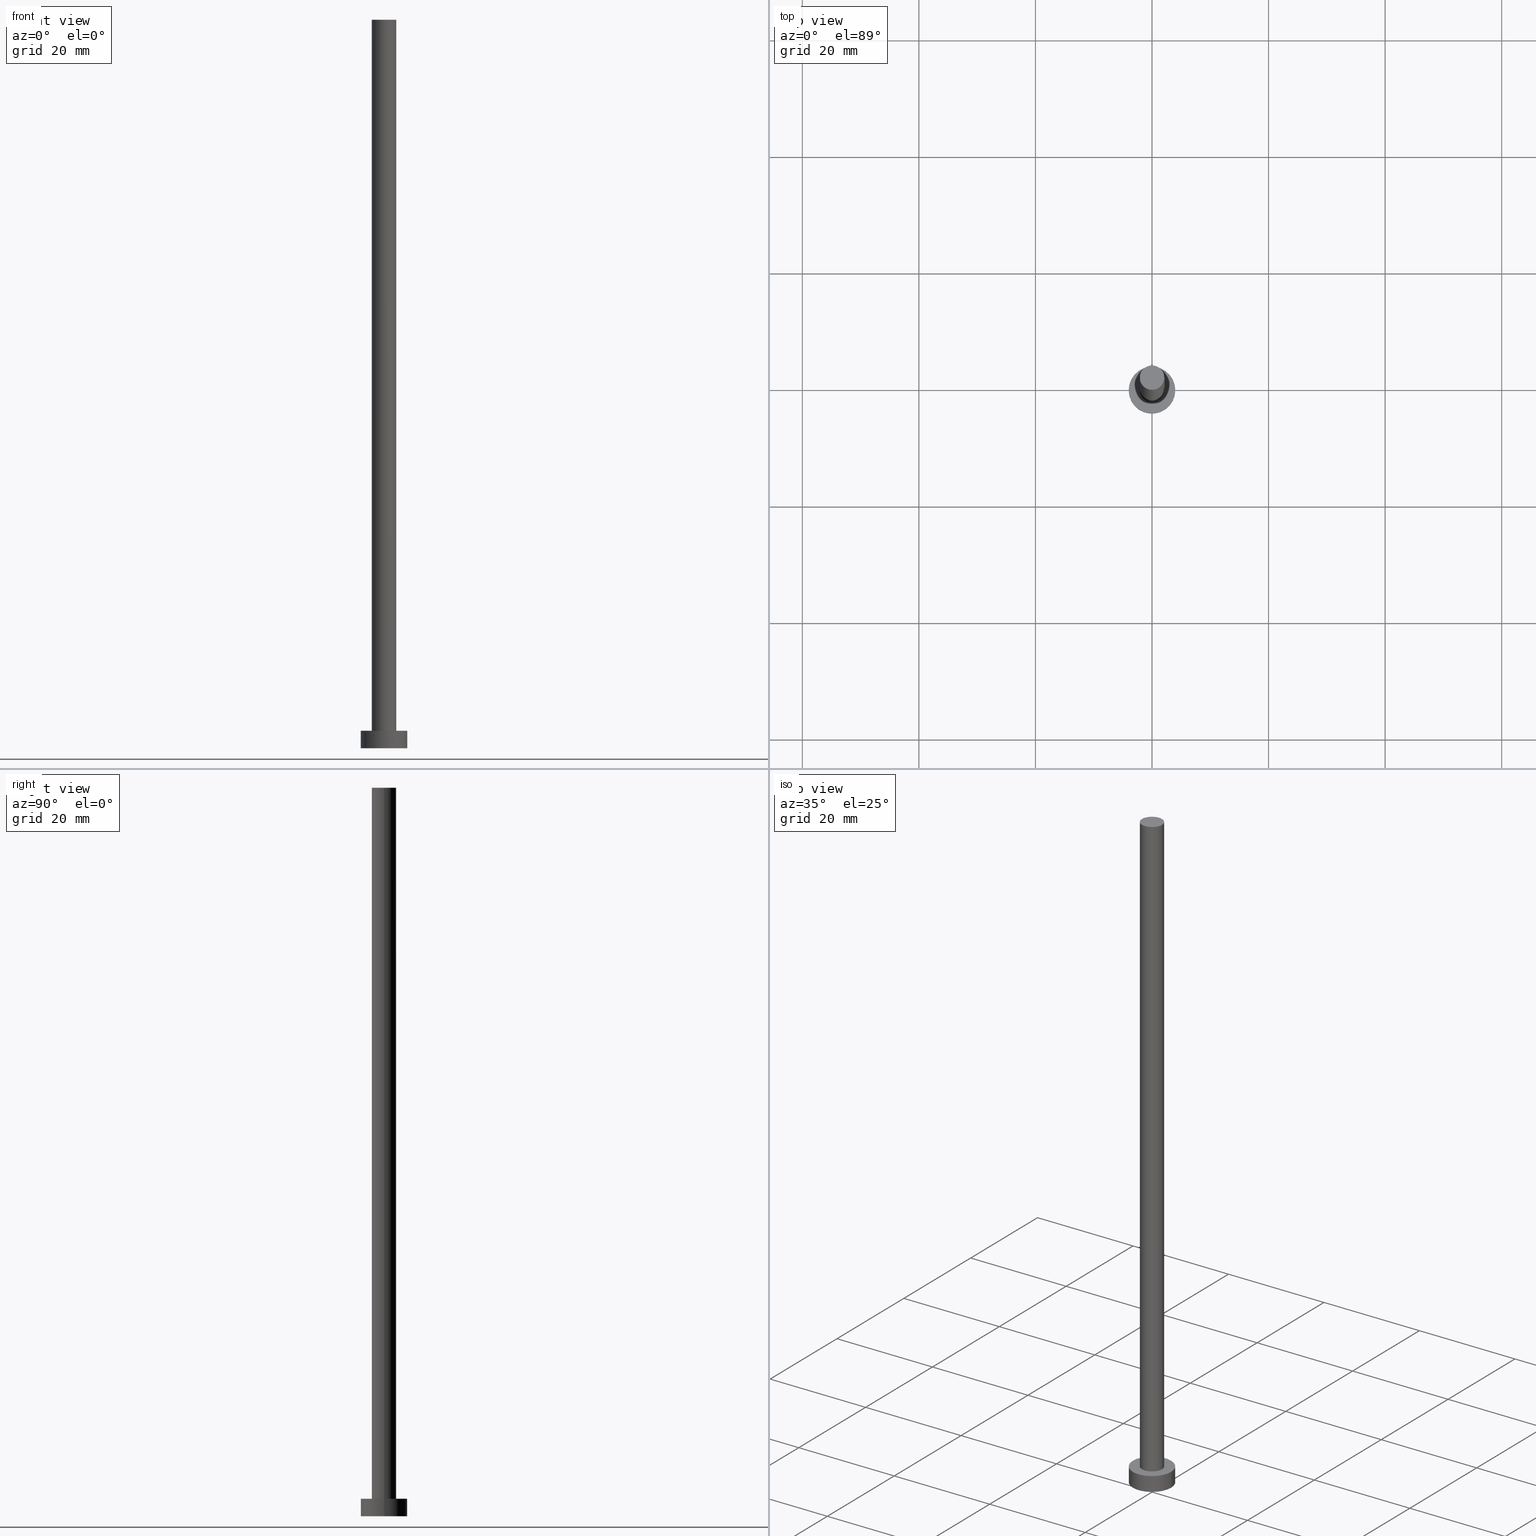
[diagram: canonical four-view strip — front | top / right | iso, engineering-drawing reading convention]
A machine part, canonical four-view strip (front | top / right | iso — engineering-drawing reading convention). The complete STEP part file that produces these views, byte-faithful:
ISO-10303-21;
HEADER;
FILE_DESCRIPTION (( 'STEP AP203' ),
    '1' );
FILE_NAME ('7f8a.STEP',
    '2023-02-13T13:56:38',
    ( '' ),
    ( '' ),
    'SwSTEP 2.0',
    'SolidWorks 2019',
    '' );
FILE_SCHEMA (( 'CONFIG_CONTROL_DESIGN' ));
ENDSEC;

DATA;
#1 = CC_DESIGN_PERSON_AND_ORGANIZATION_ASSIGNMENT ( #223, #31, ( #211 ) ) ;
#2 = AXIS2_PLACEMENT_3D ( 'NONE', #185, #201, #33 ) ;
#3 = EDGE_LOOP ( 'NONE', ( #54, #167 ) ) ;
#4 = PRODUCT ( '7f8a', '7f8a', '', ( #90 ) ) ;
#5 = APPROVAL_DATE_TIME ( #144, #21 ) ;
#6 = CARTESIAN_POINT ( 'NONE',  ( 0.000000000000000000, 0.000000000000000000, 3.000000000000000000 ) ) ;
#7 = LOCAL_TIME ( 14, 56, 38.00000000000000000, #215 ) ;
#8 = APPROVAL_PERSON_ORGANIZATION ( #142, #21, #47 ) ;
#9 = DATE_AND_TIME ( #63, #152 ) ;
#10 = DIRECTION ( 'NONE',  ( -0.000000000000000000, -0.000000000000000000, -1.000000000000000000 ) ) ;
#11 = EDGE_CURVE ( 'NONE', #220, #62, #156, .T. ) ;
#12 = CARTESIAN_POINT ( 'NONE',  ( 4.000000000000000000, 4.898587196589412829E-16, 3.000000000000000000 ) ) ;
#13 = ORIENTED_EDGE ( 'NONE', *, *, #30, .F. ) ;
#14 = EDGE_CURVE ( 'NONE', #143, #24, #205, .T. ) ;
#15 = APPLICATION_PROTOCOL_DEFINITION ( 'international standard', 'config_control_design', 1994, #85 ) ;
#16 = CARTESIAN_POINT ( 'NONE',  ( 0.000000000000000000, 0.000000000000000000, 3.000000000000000000 ) ) ;
#17 = PLANE ( 'NONE',  #70 ) ;
#18 = AXIS2_PLACEMENT_3D ( 'NONE', #207, #242, #127 ) ;
#19 = DIRECTION ( 'NONE',  ( 0.000000000000000000, 0.000000000000000000, 1.000000000000000000 ) ) ;
#20 = AXIS2_PLACEMENT_3D ( 'NONE', #157, #19, #55 ) ;
#21 = APPROVAL ( #122, 'NEUR�EN�' ) ;
#22 = EDGE_LOOP ( 'NONE', ( #123, #76, #141, #238 ) ) ;
#23 = CC_DESIGN_APPROVAL ( #135, ( #180 ) ) ;
#24 = VERTEX_POINT ( 'NONE', #147 ) ;
#25 = DIRECTION ( 'NONE',  ( 0.000000000000000000, 0.000000000000000000, 1.000000000000000000 ) ) ;
#26 = CIRCLE ( 'NONE', #225, 2.100000000000000089 ) ;
#27 = DIRECTION ( 'NONE',  ( -0.000000000000000000, -0.000000000000000000, -1.000000000000000000 ) ) ;
#28 = VECTOR ( 'NONE', #10, 1000.000000000000000 ) ;
#29 = PRODUCT_DEFINITION_SHAPE ( 'NONE', 'NONE',  #180 ) ;
#30 = EDGE_CURVE ( 'NONE', #143, #43, #131, .T. ) ;
#31 = PERSON_AND_ORGANIZATION_ROLE ( 'design_supplier' ) ;
#32 = DIRECTION ( 'NONE',  ( 1.000000000000000000, 0.000000000000000000, 0.000000000000000000 ) ) ;
#33 = DIRECTION ( 'NONE',  ( 1.000000000000000000, 0.000000000000000000, 0.000000000000000000 ) ) ;
#34 = CARTESIAN_POINT ( 'NONE',  ( -4.000000000000000000, 0.000000000000000000, 3.000000000000000000 ) ) ;
#35 = AXIS2_PLACEMENT_3D ( 'NONE', #71, #51, #32 ) ;
#36 = FACE_OUTER_BOUND ( 'NONE', #162, .T. ) ;
#37 = DIRECTION ( 'NONE',  ( -0.000000000000000000, -0.000000000000000000, -1.000000000000000000 ) ) ;
#38 = CIRCLE ( 'NONE', #139, 4.000000000000000000 ) ;
#39 = DIRECTION ( 'NONE',  ( -1.000000000000000000, 0.000000000000000000, 0.000000000000000000 ) ) ;
#40 = APPROVAL ( #119, 'NEUR�EN�' ) ;
#41 = EDGE_LOOP ( 'NONE', ( #74, #198 ) ) ;
#42 = APPROVAL_ROLE ( '' ) ;
#43 = VERTEX_POINT ( 'NONE', #34 ) ;
#44 = APPROVAL_PERSON_ORGANIZATION ( #191, #135, #72 ) ;
#45 = ADVANCED_BREP_SHAPE_REPRESENTATION ( '7f8a', ( #108, #20 ), #61 ) ;
#46 = CARTESIAN_POINT ( 'NONE',  ( -4.000000000000000000, 0.000000000000000000, 3.000000000000000000 ) ) ;
#47 = APPROVAL_ROLE ( '' ) ;
#48 = FACE_BOUND ( 'NONE', #3, .T. ) ;
#49 = ORIENTED_EDGE ( 'NONE', *, *, #124, .F. ) ;
#50 = ADVANCED_FACE ( 'NONE', ( #129 ), #105, .T. ) ;
#51 = DIRECTION ( 'NONE',  ( 0.000000000000000000, 0.000000000000000000, 1.000000000000000000 ) ) ;
#52 = EDGE_CURVE ( 'NONE', #120, #220, #130, .T. ) ;
#53 = CC_DESIGN_PERSON_AND_ORGANIZATION_ASSIGNMENT ( #202, #181, ( #211 ) ) ;
#54 = ORIENTED_EDGE ( 'NONE', *, *, #68, .F. ) ;
#55 = DIRECTION ( 'NONE',  ( 1.000000000000000000, 0.000000000000000000, 0.000000000000000000 ) ) ;
#56 = PERSON_AND_ORGANIZATION ( #193, #172 ) ;
#57 = ADVANCED_FACE ( 'NONE', ( #245 ), #226, .T. ) ;
#58 = ORIENTED_EDGE ( 'NONE', *, *, #14, .F. ) ;
#59 = CALENDAR_DATE ( 2023, 13, 2 ) ;
#60 = ORIENTED_EDGE ( 'NONE', *, *, #111, .F. ) ;
#61 =( GEOMETRIC_REPRESENTATION_CONTEXT ( 3 ) GLOBAL_UNCERTAINTY_ASSIGNED_CONTEXT ( ( #208 ) ) GLOBAL_UNIT_ASSIGNED_CONTEXT ( ( #192, #95, #92 ) ) REPRESENTATION_CONTEXT ( 'NONE', 'WORKASPACE' ) );
#62 = VERTEX_POINT ( 'NONE', #106 ) ;
#63 = CALENDAR_DATE ( 2023, 13, 2 ) ;
#64 = DIRECTION ( 'NONE',  ( 1.000000000000000000, 0.000000000000000000, 0.000000000000000000 ) ) ;
#65 = PERSON_AND_ORGANIZATION ( #193, #172 ) ;
#66 = ORIENTED_EDGE ( 'NONE', *, *, #14, .T. ) ;
#67 = CARTESIAN_POINT ( 'NONE',  ( 0.000000000000000000, 0.000000000000000000, 3.000000000000000000 ) ) ;
#68 = EDGE_CURVE ( 'NONE', #62, #220, #26, .T. ) ;
#69 = CARTESIAN_POINT ( 'NONE',  ( 0.000000000000000000, 0.000000000000000000, 125.0000000000000000 ) ) ;
#70 = AXIS2_PLACEMENT_3D ( 'NONE', #114, #91, #133 ) ;
#71 = CARTESIAN_POINT ( 'NONE',  ( 0.000000000000000000, 0.000000000000000000, 3.000000000000000000 ) ) ;
#72 = APPROVAL_ROLE ( '' ) ;
#73 = EDGE_CURVE ( 'NONE', #158, #120, #219, .T. ) ;
#74 = ORIENTED_EDGE ( 'NONE', *, *, #100, .T. ) ;
#75 = PERSON_AND_ORGANIZATION ( #193, #172 ) ;
#76 = ORIENTED_EDGE ( 'NONE', *, *, #52, .T. ) ;
#77 = ORIENTED_EDGE ( 'NONE', *, *, #170, .F. ) ;
#78 = VECTOR ( 'NONE', #27, 1000.000000000000000 ) ;
#79 = PLANE ( 'NONE',  #109 ) ;
#80 = DIRECTION ( 'NONE',  ( -1.000000000000000000, 0.000000000000000000, 0.000000000000000000 ) ) ;
#81 = CC_DESIGN_PERSON_AND_ORGANIZATION_ASSIGNMENT ( #75, #159, ( #180 ) ) ;
#82 = CALENDAR_DATE ( 2023, 13, 2 ) ;
#83 = CARTESIAN_POINT ( 'NONE',  ( -4.000000000000000000, 0.000000000000000000, 0.000000000000000000 ) ) ;
#84 = CARTESIAN_POINT ( 'NONE',  ( -2.100000000000000089, 0.000000000000000000, 125.0000000000000000 ) ) ;
#85 = APPLICATION_CONTEXT ( 'configuration controlled 3d designs of mechanical parts and assemblies' ) ;
#86 = EDGE_CURVE ( 'NONE', #120, #158, #132, .T. ) ;
#87 = AXIS2_PLACEMENT_3D ( 'NONE', #118, #216, #136 ) ;
#88 = CARTESIAN_POINT ( 'NONE',  ( 4.000000000000000000, 4.898587196589412829E-16, 3.000000000000000000 ) ) ;
#89 = ADVANCED_FACE ( 'NONE', ( #48, #183 ), #79, .T. ) ;
#90 = MECHANICAL_CONTEXT ( 'NONE', #85, 'mechanical' ) ;
#91 = DIRECTION ( 'NONE',  ( 0.000000000000000000, 0.000000000000000000, 1.000000000000000000 ) ) ;
#92 =( NAMED_UNIT ( * ) SI_UNIT ( $, .STERADIAN. ) SOLID_ANGLE_UNIT ( ) );
#93 = LOCAL_TIME ( 14, 56, 38.00000000000000000, #241 ) ;
#94 = CALENDAR_DATE ( 2023, 13, 2 ) ;
#95 =( NAMED_UNIT ( * ) PLANE_ANGLE_UNIT ( ) SI_UNIT ( $, .RADIAN. ) );
#96 = SECURITY_CLASSIFICATION_LEVEL ( 'unclassified' ) ;
#97 = VERTEX_POINT ( 'NONE', #83 ) ;
#98 = COORDINATED_UNIVERSAL_TIME_OFFSET ( 1, 0, .AHEAD. ) ;
#99 = APPLICATION_CONTEXT ( 'configuration controlled 3d designs of mechanical parts and assemblies' ) ;
#100 = EDGE_CURVE ( 'NONE', #43, #143, #115, .T. ) ;
#101 = DIRECTION ( 'NONE',  ( 0.000000000000000000, 0.000000000000000000, 1.000000000000000000 ) ) ;
#102 = AXIS2_PLACEMENT_3D ( 'NONE', #69, #25, #171 ) ;
#103 = DIRECTION ( 'NONE',  ( 1.000000000000000000, 0.000000000000000000, 0.000000000000000000 ) ) ;
#104 = PERSON_AND_ORGANIZATION_ROLE ( 'classification_officer' ) ;
#105 = PLANE ( 'NONE',  #102 ) ;
#106 = CARTESIAN_POINT ( 'NONE',  ( -2.100000000000000089, 0.000000000000000000, 3.000000000000000000 ) ) ;
#107 = DIRECTION ( 'NONE',  ( -0.000000000000000000, -0.000000000000000000, -1.000000000000000000 ) ) ;
#108 = MANIFOLD_SOLID_BREP ( 'P�idat vysunut�m3', #164 ) ;
#109 = AXIS2_PLACEMENT_3D ( 'NONE', #6, #165, #166 ) ;
#110 = AXIS2_PLACEMENT_3D ( 'NONE', #212, #197, #113 ) ;
#111 = EDGE_CURVE ( 'NONE', #24, #97, #38, .T. ) ;
#112 = CC_DESIGN_SECURITY_CLASSIFICATION ( #179, ( #211 ) ) ;
#113 = DIRECTION ( 'NONE',  ( 1.000000000000000000, 0.000000000000000000, 0.000000000000000000 ) ) ;
#114 = CARTESIAN_POINT ( 'NONE',  ( 0.000000000000000000, 0.000000000000000000, 0.000000000000000000 ) ) ;
#115 = CIRCLE ( 'NONE', #18, 4.000000000000000000 ) ;
#116 = CARTESIAN_POINT ( 'NONE',  ( 0.000000000000000000, 0.000000000000000000, 125.0000000000000000 ) ) ;
#117 = ORIENTED_EDGE ( 'NONE', *, *, #111, .T. ) ;
#118 = CARTESIAN_POINT ( 'NONE',  ( 0.000000000000000000, 0.000000000000000000, 3.000000000000000000 ) ) ;
#119 = APPROVAL_STATUS ( 'not_yet_approved' ) ;
#120 = VERTEX_POINT ( 'NONE', #244 ) ;
#121 = DESIGN_CONTEXT ( 'detailed design', #99, 'design' ) ;
#122 = APPROVAL_STATUS ( 'not_yet_approved' ) ;
#123 = ORIENTED_EDGE ( 'NONE', *, *, #86, .F. ) ;
#124 = EDGE_CURVE ( 'NONE', #43, #97, #145, .T. ) ;
#125 = EDGE_LOOP ( 'NONE', ( #13, #66, #117, #49 ) ) ;
#126 = CARTESIAN_POINT ( 'NONE',  ( 0.000000000000000000, 0.000000000000000000, 125.0000000000000000 ) ) ;
#127 = DIRECTION ( 'NONE',  ( 1.000000000000000000, 0.000000000000000000, 0.000000000000000000 ) ) ;
#128 = LOCAL_TIME ( 14, 56, 38.00000000000000000, #98 ) ;
#129 = FACE_OUTER_BOUND ( 'NONE', #228, .T. ) ;
#130 = LINE ( 'NONE', #224, #78 ) ;
#131 = CIRCLE ( 'NONE', #2, 4.000000000000000000 ) ;
#132 = CIRCLE ( 'NONE', #150, 2.100000000000000089 ) ;
#133 = DIRECTION ( 'NONE',  ( 1.000000000000000000, 0.000000000000000000, -0.000000000000000000 ) ) ;
#134 = APPLICATION_PROTOCOL_DEFINITION ( 'international standard', 'config_control_design', 1994, #99 ) ;
#135 = APPROVAL ( #174, 'NEUR�EN�' ) ;
#136 = DIRECTION ( 'NONE',  ( -1.000000000000000000, 0.000000000000000000, 0.000000000000000000 ) ) ;
#137 = DIRECTION ( 'NONE',  ( -0.000000000000000000, -0.000000000000000000, -1.000000000000000000 ) ) ;
#138 = ORIENTED_EDGE ( 'NONE', *, *, #73, .T. ) ;
#139 = AXIS2_PLACEMENT_3D ( 'NONE', #189, #222, #64 ) ;
#140 = DATE_AND_TIME ( #59, #177 ) ;
#141 = ORIENTED_EDGE ( 'NONE', *, *, #11, .T. ) ;
#142 = PERSON_AND_ORGANIZATION ( #193, #172 ) ;
#143 = VERTEX_POINT ( 'NONE', #12 ) ;
#144 = DATE_AND_TIME ( #82, #128 ) ;
#145 = LINE ( 'NONE', #46, #28 ) ;
#146 = COORDINATED_UNIVERSAL_TIME_OFFSET ( 1, 0, .AHEAD. ) ;
#147 = CARTESIAN_POINT ( 'NONE',  ( 4.000000000000000000, 4.898587196589412829E-16, 0.000000000000000000 ) ) ;
#148 = DIRECTION ( 'NONE',  ( 1.000000000000000000, 0.000000000000000000, 0.000000000000000000 ) ) ;
#149 = EDGE_LOOP ( 'NONE', ( #163, #217, #218, #250 ) ) ;
#150 = AXIS2_PLACEMENT_3D ( 'NONE', #126, #203, #103 ) ;
#151 = VECTOR ( 'NONE', #252, 1000.000000000000000 ) ;
#152 = LOCAL_TIME ( 14, 56, 38.00000000000000000, #146 ) ;
#153 = CARTESIAN_POINT ( 'NONE',  ( 0.000000000000000000, 0.000000000000000000, 125.0000000000000000 ) ) ;
#154 = PERSON_AND_ORGANIZATION_ROLE ( 'design_owner' ) ;
#155 = CC_DESIGN_DATE_AND_TIME_ASSIGNMENT ( #140, #254, ( #180 ) ) ;
#156 = CIRCLE ( 'NONE', #35, 2.100000000000000089 ) ;
#157 = CARTESIAN_POINT ( 'NONE',  ( 0.000000000000000000, 0.000000000000000000, 0.000000000000000000 ) ) ;
#158 = VERTEX_POINT ( 'NONE', #84 ) ;
#159 = PERSON_AND_ORGANIZATION_ROLE ( 'creator' ) ;
#160 = ADVANCED_FACE ( 'NONE', ( #169 ), #246, .T. ) ;
#161 = DATE_AND_TIME ( #243, #93 ) ;
#162 = EDGE_LOOP ( 'NONE', ( #77, #60 ) ) ;
#163 = ORIENTED_EDGE ( 'NONE', *, *, #52, .F. ) ;
#164 = CLOSED_SHELL ( 'NONE', ( #57, #160, #182, #89, #195, #210, #50 ) ) ;
#165 = DIRECTION ( 'NONE',  ( 0.000000000000000000, 0.000000000000000000, 1.000000000000000000 ) ) ;
#166 = DIRECTION ( 'NONE',  ( 1.000000000000000000, 0.000000000000000000, -0.000000000000000000 ) ) ;
#167 = ORIENTED_EDGE ( 'NONE', *, *, #11, .F. ) ;
#168 = CIRCLE ( 'NONE', #110, 4.000000000000000000 ) ;
#169 = FACE_OUTER_BOUND ( 'NONE', #125, .T. ) ;
#170 = EDGE_CURVE ( 'NONE', #97, #24, #168, .T. ) ;
#171 = DIRECTION ( 'NONE',  ( 1.000000000000000000, 0.000000000000000000, -0.000000000000000000 ) ) ;
#172 = ORGANIZATION ( 'NEUR�EN�', 'NEUR�EN�', '' ) ;
#173 = CARTESIAN_POINT ( 'NONE',  ( 2.100000000000000089, 2.571758278209441464E-16, 3.000000000000000000 ) ) ;
#174 = APPROVAL_STATUS ( 'not_yet_approved' ) ;
#175 = CYLINDRICAL_SURFACE ( 'NONE', #184, 4.000000000000000000 ) ;
#176 = ORIENTED_EDGE ( 'NONE', *, *, #100, .F. ) ;
#177 = LOCAL_TIME ( 14, 56, 38.00000000000000000, #236 ) ;
#178 = FACE_OUTER_BOUND ( 'NONE', #149, .T. ) ;
#179 = SECURITY_CLASSIFICATION ( '', '', #96 ) ;
#180 = PRODUCT_DEFINITION ( 'NEZN�M�', '', #211, #121 ) ;
#181 = PERSON_AND_ORGANIZATION_ROLE ( 'creator' ) ;
#182 = ADVANCED_FACE ( 'NONE', ( #213 ), #175, .T. ) ;
#183 = FACE_OUTER_BOUND ( 'NONE', #41, .T. ) ;
#184 = AXIS2_PLACEMENT_3D ( 'NONE', #16, #137, #39 ) ;
#185 = CARTESIAN_POINT ( 'NONE',  ( 0.000000000000000000, 0.000000000000000000, 3.000000000000000000 ) ) ;
#186 = CC_DESIGN_APPROVAL ( #21, ( #179 ) ) ;
#187 = APPROVAL_DATE_TIME ( #9, #40 ) ;
#188 = DIRECTION ( 'NONE',  ( -0.000000000000000000, -0.000000000000000000, -1.000000000000000000 ) ) ;
#189 = CARTESIAN_POINT ( 'NONE',  ( 0.000000000000000000, 0.000000000000000000, 0.000000000000000000 ) ) ;
#190 = DIRECTION ( 'NONE',  ( 0.000000000000000000, 0.000000000000000000, 1.000000000000000000 ) ) ;
#191 = PERSON_AND_ORGANIZATION ( #193, #172 ) ;
#192 =( LENGTH_UNIT ( ) NAMED_UNIT ( * ) SI_UNIT ( .MILLI., .METRE. ) );
#193 = PERSON ( 'NEUR�EN�', 'NEUR�EN�', 'NEUR�EN�', ('NEUR�EN�'), ('NEUR�EN�'), ('NEUR�EN�') ) ;
#194 = DIRECTION ( 'NONE',  ( -1.000000000000000000, 0.000000000000000000, 0.000000000000000000 ) ) ;
#195 = ADVANCED_FACE ( 'NONE', ( #36 ), #17, .F. ) ;
#196 = EDGE_LOOP ( 'NONE', ( #58, #176, #255, #235 ) ) ;
#197 = DIRECTION ( 'NONE',  ( 0.000000000000000000, 0.000000000000000000, 1.000000000000000000 ) ) ;
#198 = ORIENTED_EDGE ( 'NONE', *, *, #30, .T. ) ;
#199 = CC_DESIGN_PERSON_AND_ORGANIZATION_ASSIGNMENT ( #56, #154, ( #4 ) ) ;
#200 = SHAPE_DEFINITION_REPRESENTATION ( #29, #45 ) ;
#201 = DIRECTION ( 'NONE',  ( 0.000000000000000000, 0.000000000000000000, 1.000000000000000000 ) ) ;
#202 = PERSON_AND_ORGANIZATION ( #193, #172 ) ;
#203 = DIRECTION ( 'NONE',  ( 0.000000000000000000, 0.000000000000000000, 1.000000000000000000 ) ) ;
#204 = PERSON_AND_ORGANIZATION ( #193, #172 ) ;
#205 = LINE ( 'NONE', #88, #247 ) ;
#206 = EDGE_CURVE ( 'NONE', #158, #62, #232, .T. ) ;
#207 = CARTESIAN_POINT ( 'NONE',  ( 0.000000000000000000, 0.000000000000000000, 3.000000000000000000 ) ) ;
#208 = UNCERTAINTY_MEASURE_WITH_UNIT (LENGTH_MEASURE( 1.000000000000000082E-05 ), #192, 'distance_accuracy_value', 'NONE');
#209 = CARTESIAN_POINT ( 'NONE',  ( 0.000000000000000000, 0.000000000000000000, 125.0000000000000000 ) ) ;
#210 = ADVANCED_FACE ( 'NONE', ( #178 ), #239, .T. ) ;
#211 = PRODUCT_DEFINITION_FORMATION_WITH_SPECIFIED_SOURCE ( 'LIBOVOLN�', '', #4, .NOT_KNOWN. ) ;
#212 = CARTESIAN_POINT ( 'NONE',  ( 0.000000000000000000, 0.000000000000000000, 0.000000000000000000 ) ) ;
#213 = FACE_OUTER_BOUND ( 'NONE', #196, .T. ) ;
#214 = CC_DESIGN_PERSON_AND_ORGANIZATION_ASSIGNMENT ( #204, #104, ( #179 ) ) ;
#215 = COORDINATED_UNIVERSAL_TIME_OFFSET ( 1, 0, .AHEAD. ) ;
#216 = DIRECTION ( 'NONE',  ( -0.000000000000000000, -0.000000000000000000, -1.000000000000000000 ) ) ;
#217 = ORIENTED_EDGE ( 'NONE', *, *, #73, .F. ) ;
#218 = ORIENTED_EDGE ( 'NONE', *, *, #206, .T. ) ;
#219 = CIRCLE ( 'NONE', #240, 2.100000000000000089 ) ;
#220 = VERTEX_POINT ( 'NONE', #173 ) ;
#221 = DATE_TIME_ROLE ( 'classification_date' ) ;
#222 = DIRECTION ( 'NONE',  ( 0.000000000000000000, 0.000000000000000000, 1.000000000000000000 ) ) ;
#223 = PERSON_AND_ORGANIZATION ( #193, #172 ) ;
#224 = CARTESIAN_POINT ( 'NONE',  ( 2.100000000000000089, 2.571758278209441464E-16, 125.0000000000000000 ) ) ;
#225 = AXIS2_PLACEMENT_3D ( 'NONE', #67, #101, #148 ) ;
#226 = CYLINDRICAL_SURFACE ( 'NONE', #237, 2.100000000000000089 ) ;
#227 = CC_DESIGN_APPROVAL ( #40, ( #211 ) ) ;
#228 = EDGE_LOOP ( 'NONE', ( #138, #249 ) ) ;
#229 = APPROVAL_PERSON_ORGANIZATION ( #65, #40, #42 ) ;
#230 = PRODUCT_RELATED_PRODUCT_CATEGORY ( 'detail', '', ( #4 ) ) ;
#231 = DIRECTION ( 'NONE',  ( 1.000000000000000000, 0.000000000000000000, 0.000000000000000000 ) ) ;
#232 = LINE ( 'NONE', #234, #151 ) ;
#233 = DATE_AND_TIME ( #94, #7 ) ;
#234 = CARTESIAN_POINT ( 'NONE',  ( -2.100000000000000089, 0.000000000000000000, 125.0000000000000000 ) ) ;
#235 = ORIENTED_EDGE ( 'NONE', *, *, #170, .T. ) ;
#236 = COORDINATED_UNIVERSAL_TIME_OFFSET ( 1, 0, .AHEAD. ) ;
#237 = AXIS2_PLACEMENT_3D ( 'NONE', #209, #107, #80 ) ;
#238 = ORIENTED_EDGE ( 'NONE', *, *, #206, .F. ) ;
#239 = CYLINDRICAL_SURFACE ( 'NONE', #253, 2.100000000000000089 ) ;
#240 = AXIS2_PLACEMENT_3D ( 'NONE', #153, #190, #231 ) ;
#241 = COORDINATED_UNIVERSAL_TIME_OFFSET ( 1, 0, .AHEAD. ) ;
#242 = DIRECTION ( 'NONE',  ( 0.000000000000000000, 0.000000000000000000, 1.000000000000000000 ) ) ;
#243 = CALENDAR_DATE ( 2023, 13, 2 ) ;
#244 = CARTESIAN_POINT ( 'NONE',  ( 2.100000000000000089, 2.571758278209441464E-16, 125.0000000000000000 ) ) ;
#245 = FACE_OUTER_BOUND ( 'NONE', #22, .T. ) ;
#246 = CYLINDRICAL_SURFACE ( 'NONE', #87, 4.000000000000000000 ) ;
#247 = VECTOR ( 'NONE', #188, 1000.000000000000000 ) ;
#248 = CC_DESIGN_DATE_AND_TIME_ASSIGNMENT ( #161, #221, ( #179 ) ) ;
#249 = ORIENTED_EDGE ( 'NONE', *, *, #86, .T. ) ;
#250 = ORIENTED_EDGE ( 'NONE', *, *, #68, .T. ) ;
#251 = APPROVAL_DATE_TIME ( #233, #135 ) ;
#252 = DIRECTION ( 'NONE',  ( -0.000000000000000000, -0.000000000000000000, -1.000000000000000000 ) ) ;
#253 = AXIS2_PLACEMENT_3D ( 'NONE', #116, #37, #194 ) ;
#254 = DATE_TIME_ROLE ( 'creation_date' ) ;
#255 = ORIENTED_EDGE ( 'NONE', *, *, #124, .T. ) ;
ENDSEC;
END-ISO-10303-21;
